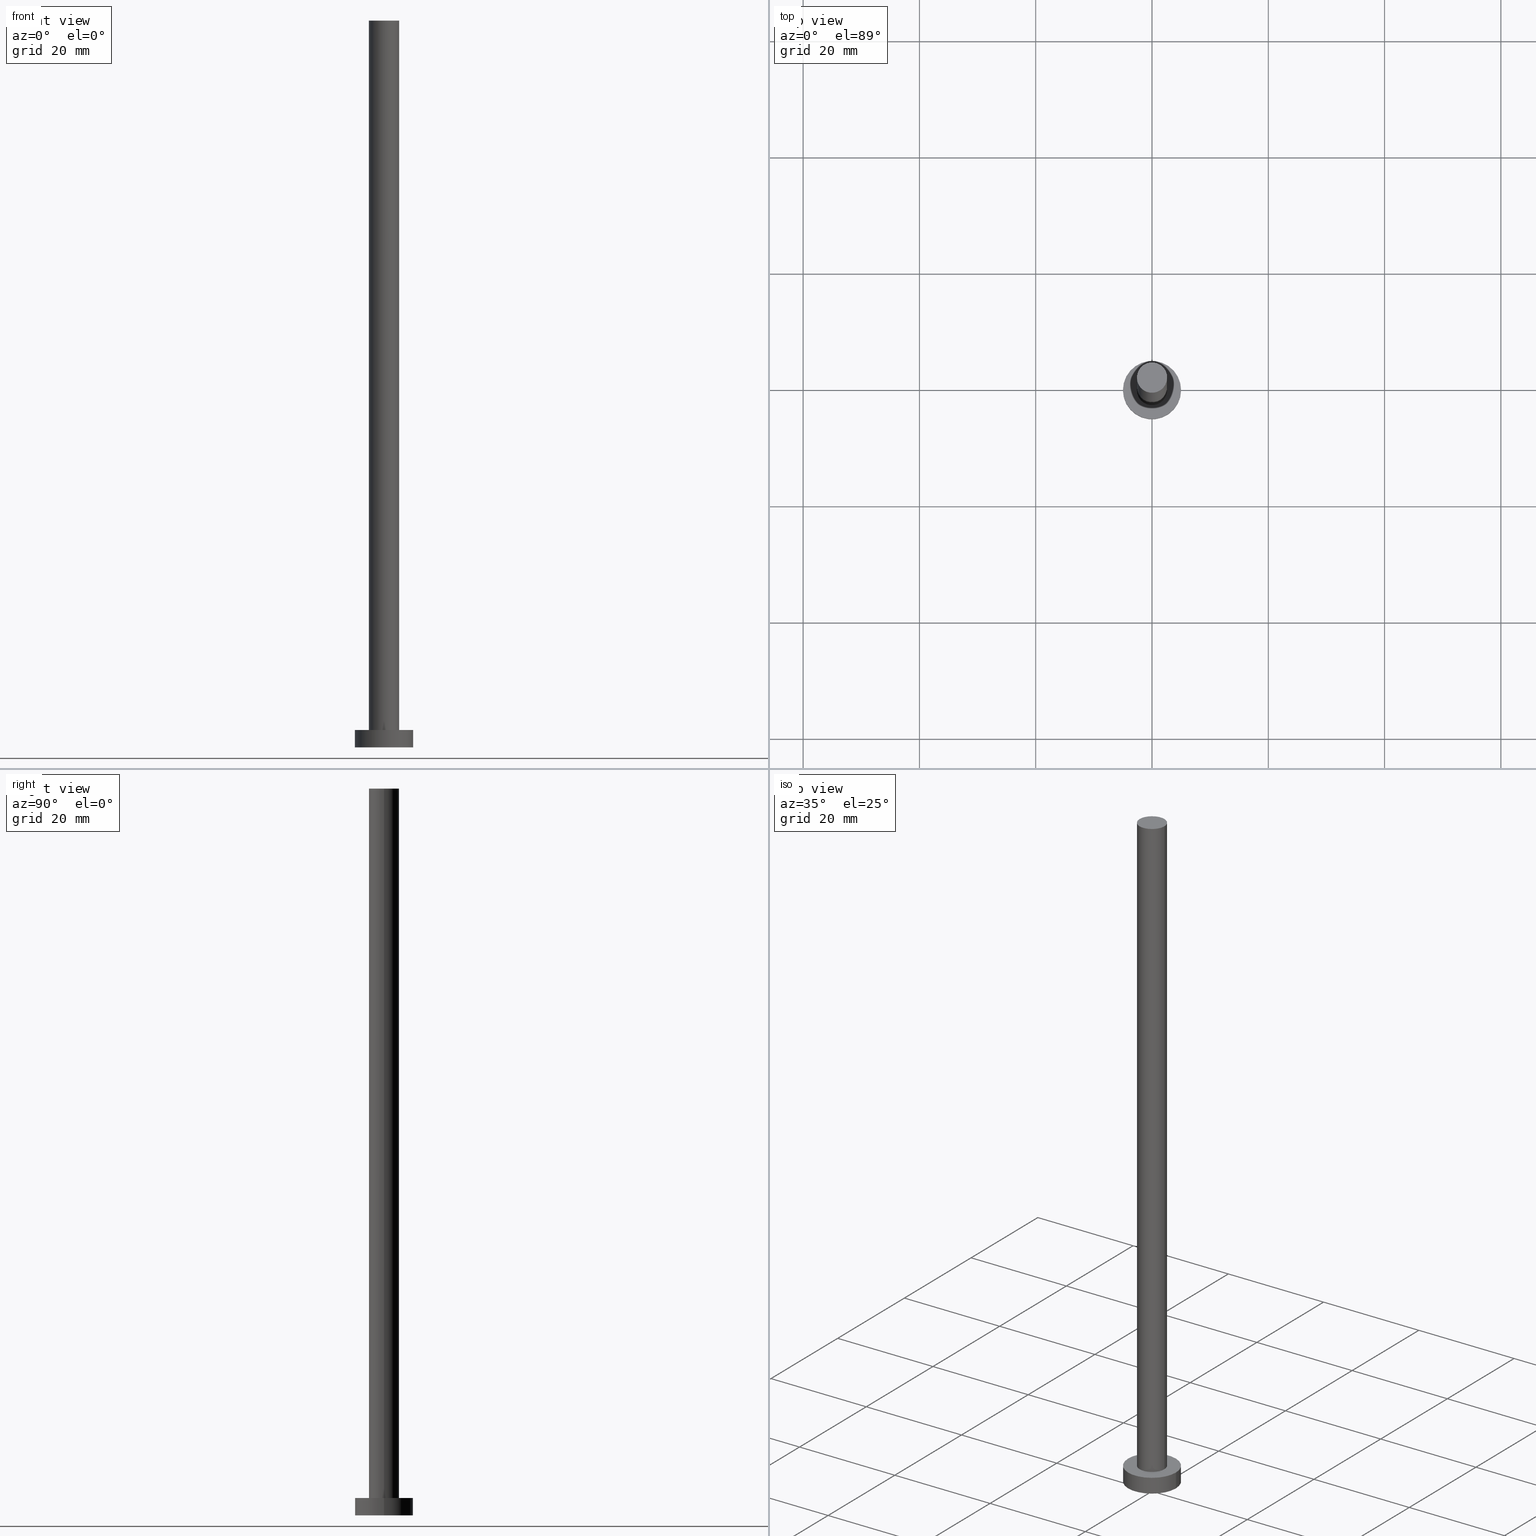
[diagram: canonical four-view strip — front | top / right | iso, engineering-drawing reading convention]
A machine part, canonical four-view strip (front | top / right | iso — engineering-drawing reading convention). The complete STEP part file that produces these views, byte-faithful:
ISO-10303-21;
HEADER;
FILE_DESCRIPTION (( 'STEP AP203' ),
    '1' );
FILE_NAME ('f566.STEP',
    '2023-02-13T15:49:22',
    ( '' ),
    ( '' ),
    'SwSTEP 2.0',
    'SolidWorks 2019',
    '' );
FILE_SCHEMA (( 'CONFIG_CONTROL_DESIGN' ));
ENDSEC;

DATA;
#1 = APPROVAL_STATUS ( 'not_yet_approved' ) ;
#2 = CC_DESIGN_PERSON_AND_ORGANIZATION_ASSIGNMENT ( #16, #27, ( #251 ) ) ;
#3 = DATE_AND_TIME ( #70, #64 ) ;
#4 = APPROVAL_DATE_TIME ( #3, #50 ) ;
#5 = CARTESIAN_POINT ( 'NONE',  ( 0.000000000000000000, 0.000000000000000000, 125.0000000000000000 ) ) ;
#6 = CARTESIAN_POINT ( 'NONE',  ( -5.000000000000000000, 0.000000000000000000, 3.000000000000000000 ) ) ;
#7 = ORIENTED_EDGE ( 'NONE', *, *, #233, .T. ) ;
#8 = ORIENTED_EDGE ( 'NONE', *, *, #151, .T. ) ;
#9 = DIRECTION ( 'NONE',  ( -1.000000000000000000, 0.000000000000000000, 0.000000000000000000 ) ) ;
#10 = APPROVAL_DATE_TIME ( #87, #147 ) ;
#11 = EDGE_CURVE ( 'NONE', #131, #250, #90, .T. ) ;
#12 = ORIENTED_EDGE ( 'NONE', *, *, #55, .F. ) ;
#13 = VECTOR ( 'NONE', #165, 1000.000000000000000 ) ;
#14 = CIRCLE ( 'NONE', #80, 2.600000000000000089 ) ;
#15 = PERSON_AND_ORGANIZATION ( #200, #49 ) ;
#16 = PERSON_AND_ORGANIZATION ( #200, #49 ) ;
#17 = EDGE_CURVE ( 'NONE', #206, #250, #66, .T. ) ;
#18 = COORDINATED_UNIVERSAL_TIME_OFFSET ( 1, 0, .AHEAD. ) ;
#19 = APPROVAL_STATUS ( 'not_yet_approved' ) ;
#20 = ORIENTED_EDGE ( 'NONE', *, *, #94, .F. ) ;
#21 = FACE_OUTER_BOUND ( 'NONE', #191, .T. ) ;
#22 = EDGE_LOOP ( 'NONE', ( #42, #119 ) ) ;
#23 = APPROVAL_PERSON_ORGANIZATION ( #186, #147, #97 ) ;
#24 = VERTEX_POINT ( 'NONE', #159 ) ;
#25 =( NAMED_UNIT ( * ) SI_UNIT ( $, .STERADIAN. ) SOLID_ANGLE_UNIT ( ) );
#26 = SECURITY_CLASSIFICATION ( '', '', #62 ) ;
#27 = PERSON_AND_ORGANIZATION_ROLE ( 'creator' ) ;
#28 = VERTEX_POINT ( 'NONE', #54 ) ;
#29 = CARTESIAN_POINT ( 'NONE',  ( 0.000000000000000000, 0.000000000000000000, 0.000000000000000000 ) ) ;
#30 = SHAPE_DEFINITION_REPRESENTATION ( #95, #228 ) ;
#31 = MANIFOLD_SOLID_BREP ( 'P�idat vysunut�m3', #239 ) ;
#32 =( NAMED_UNIT ( * ) PLANE_ANGLE_UNIT ( ) SI_UNIT ( $, .RADIAN. ) );
#33 = CIRCLE ( 'NONE', #45, 5.000000000000000000 ) ;
#34 = CIRCLE ( 'NONE', #134, 5.000000000000000000 ) ;
#35 = VECTOR ( 'NONE', #167, 1000.000000000000000 ) ;
#36 = LINE ( 'NONE', #39, #129 ) ;
#37 = CARTESIAN_POINT ( 'NONE',  ( 0.000000000000000000, 0.000000000000000000, 3.000000000000000000 ) ) ;
#38 = CC_DESIGN_PERSON_AND_ORGANIZATION_ASSIGNMENT ( #109, #40, ( #144 ) ) ;
#39 = CARTESIAN_POINT ( 'NONE',  ( -2.600000000000000089, 0.000000000000000000, 125.0000000000000000 ) ) ;
#40 = PERSON_AND_ORGANIZATION_ROLE ( 'design_owner' ) ;
#41 = CARTESIAN_POINT ( 'NONE',  ( 0.000000000000000000, 0.000000000000000000, 3.000000000000000000 ) ) ;
#42 = ORIENTED_EDGE ( 'NONE', *, *, #248, .T. ) ;
#43 = FACE_OUTER_BOUND ( 'NONE', #158, .T. ) ;
#44 = ORIENTED_EDGE ( 'NONE', *, *, #94, .T. ) ;
#45 = AXIS2_PLACEMENT_3D ( 'NONE', #247, #99, #152 ) ;
#46 = CC_DESIGN_DATE_AND_TIME_ASSIGNMENT ( #139, #75, ( #189 ) ) ;
#47 =( GEOMETRIC_REPRESENTATION_CONTEXT ( 3 ) GLOBAL_UNCERTAINTY_ASSIGNED_CONTEXT ( ( #137 ) ) GLOBAL_UNIT_ASSIGNED_CONTEXT ( ( #142, #32, #25 ) ) REPRESENTATION_CONTEXT ( 'NONE', 'WORKASPACE' ) );
#48 = ORIENTED_EDGE ( 'NONE', *, *, #59, .T. ) ;
#49 = ORGANIZATION ( 'NEUR�EN�', 'NEUR�EN�', '' ) ;
#50 = APPROVAL ( #116, 'NEUR�EN�' ) ;
#51 = APPLICATION_CONTEXT ( 'configuration controlled 3d designs of mechanical parts and assemblies' ) ;
#52 = PERSON_AND_ORGANIZATION ( #200, #49 ) ;
#53 = LOCAL_TIME ( 16, 49, 22.00000000000000000, #214 ) ;
#54 = CARTESIAN_POINT ( 'NONE',  ( -2.600000000000000089, 0.000000000000000000, 125.0000000000000000 ) ) ;
#55 = EDGE_CURVE ( 'NONE', #104, #28, #238, .T. ) ;
#56 = DIRECTION ( 'NONE',  ( 0.000000000000000000, 0.000000000000000000, 1.000000000000000000 ) ) ;
#57 = FACE_OUTER_BOUND ( 'NONE', #204, .T. ) ;
#58 = CYLINDRICAL_SURFACE ( 'NONE', #92, 5.000000000000000000 ) ;
#59 = EDGE_CURVE ( 'NONE', #28, #135, #36, .T. ) ;
#60 = DIRECTION ( 'NONE',  ( 1.000000000000000000, 0.000000000000000000, 0.000000000000000000 ) ) ;
#61 = AXIS2_PLACEMENT_3D ( 'NONE', #29, #124, #98 ) ;
#62 = SECURITY_CLASSIFICATION_LEVEL ( 'unclassified' ) ;
#63 = ORIENTED_EDGE ( 'NONE', *, *, #178, .F. ) ;
#64 = LOCAL_TIME ( 16, 49, 22.00000000000000000, #18 ) ;
#65 = ORIENTED_EDGE ( 'NONE', *, *, #11, .T. ) ;
#66 = LINE ( 'NONE', #110, #229 ) ;
#67 = PRODUCT_RELATED_PRODUCT_CATEGORY ( 'detail', '', ( #144 ) ) ;
#68 = LOCAL_TIME ( 16, 49, 22.00000000000000000, #218 ) ;
#69 = APPROVAL_DATE_TIME ( #93, #210 ) ;
#70 = CALENDAR_DATE ( 2023, 13, 2 ) ;
#71 = CARTESIAN_POINT ( 'NONE',  ( 5.000000000000000000, 6.123233995736766282E-16, 3.000000000000000000 ) ) ;
#72 = DIRECTION ( 'NONE',  ( 0.000000000000000000, 0.000000000000000000, 1.000000000000000000 ) ) ;
#73 = DIRECTION ( 'NONE',  ( 0.000000000000000000, 0.000000000000000000, 1.000000000000000000 ) ) ;
#74 = LINE ( 'NONE', #163, #13 ) ;
#75 = DATE_TIME_ROLE ( 'creation_date' ) ;
#76 = AXIS2_PLACEMENT_3D ( 'NONE', #249, #112, #176 ) ;
#77 = ORIENTED_EDGE ( 'NONE', *, *, #17, .F. ) ;
#78 = DIRECTION ( 'NONE',  ( 1.000000000000000000, 0.000000000000000000, -0.000000000000000000 ) ) ;
#79 = CYLINDRICAL_SURFACE ( 'NONE', #161, 2.600000000000000089 ) ;
#80 = AXIS2_PLACEMENT_3D ( 'NONE', #241, #56, #148 ) ;
#81 = ORIENTED_EDGE ( 'NONE', *, *, #178, .T. ) ;
#82 = DIRECTION ( 'NONE',  ( -0.000000000000000000, -0.000000000000000000, -1.000000000000000000 ) ) ;
#83 = ADVANCED_FACE ( 'NONE', ( #21 ), #79, .T. ) ;
#84 = ORIENTED_EDGE ( 'NONE', *, *, #151, .F. ) ;
#85 = DESIGN_CONTEXT ( 'detailed design', #51, 'design' ) ;
#86 = PLANE ( 'NONE',  #115 ) ;
#87 = DATE_AND_TIME ( #193, #254 ) ;
#88 = PERSON_AND_ORGANIZATION ( #200, #49 ) ;
#89 = DIRECTION ( 'NONE',  ( 0.000000000000000000, 0.000000000000000000, 1.000000000000000000 ) ) ;
#90 = CIRCLE ( 'NONE', #76, 5.000000000000000000 ) ;
#91 = CIRCLE ( 'NONE', #197, 5.000000000000000000 ) ;
#92 = AXIS2_PLACEMENT_3D ( 'NONE', #37, #171, #108 ) ;
#93 = DATE_AND_TIME ( #215, #53 ) ;
#94 = EDGE_CURVE ( 'NONE', #250, #131, #33, .T. ) ;
#95 = PRODUCT_DEFINITION_SHAPE ( 'NONE', 'NONE',  #189 ) ;
#96 = FACE_BOUND ( 'NONE', #101, .T. ) ;
#97 = APPROVAL_ROLE ( '' ) ;
#98 = DIRECTION ( 'NONE',  ( 1.000000000000000000, 0.000000000000000000, 0.000000000000000000 ) ) ;
#99 = DIRECTION ( 'NONE',  ( 0.000000000000000000, 0.000000000000000000, 1.000000000000000000 ) ) ;
#100 = EDGE_LOOP ( 'NONE', ( #20, #230 ) ) ;
#101 = EDGE_LOOP ( 'NONE', ( #185, #106 ) ) ;
#102 = LINE ( 'NONE', #225, #35 ) ;
#103 = CARTESIAN_POINT ( 'NONE',  ( 0.000000000000000000, 0.000000000000000000, 125.0000000000000000 ) ) ;
#104 = VERTEX_POINT ( 'NONE', #202 ) ;
#105 = DIRECTION ( 'NONE',  ( 1.000000000000000000, 0.000000000000000000, -0.000000000000000000 ) ) ;
#106 = ORIENTED_EDGE ( 'NONE', *, *, #252, .F. ) ;
#107 = CARTESIAN_POINT ( 'NONE',  ( 0.000000000000000000, 0.000000000000000000, 0.000000000000000000 ) ) ;
#108 = DIRECTION ( 'NONE',  ( -1.000000000000000000, 0.000000000000000000, 0.000000000000000000 ) ) ;
#109 = PERSON_AND_ORGANIZATION ( #200, #49 ) ;
#110 = CARTESIAN_POINT ( 'NONE',  ( -5.000000000000000000, 0.000000000000000000, 3.000000000000000000 ) ) ;
#111 = DATE_TIME_ROLE ( 'classification_date' ) ;
#112 = DIRECTION ( 'NONE',  ( 0.000000000000000000, 0.000000000000000000, 1.000000000000000000 ) ) ;
#113 = DIRECTION ( 'NONE',  ( 1.000000000000000000, 0.000000000000000000, 0.000000000000000000 ) ) ;
#114 = AXIS2_PLACEMENT_3D ( 'NONE', #172, #89, #153 ) ;
#115 = AXIS2_PLACEMENT_3D ( 'NONE', #107, #120, #78 ) ;
#116 = APPROVAL_STATUS ( 'not_yet_approved' ) ;
#117 = ADVANCED_FACE ( 'NONE', ( #226 ), #243, .T. ) ;
#118 = CALENDAR_DATE ( 2023, 13, 2 ) ;
#119 = ORIENTED_EDGE ( 'NONE', *, *, #55, .T. ) ;
#120 = DIRECTION ( 'NONE',  ( 0.000000000000000000, 0.000000000000000000, 1.000000000000000000 ) ) ;
#121 = LOCAL_TIME ( 16, 49, 22.00000000000000000, #213 ) ;
#122 = PLANE ( 'NONE',  #240 ) ;
#123 = MECHANICAL_CONTEXT ( 'NONE', #237, 'mechanical' ) ;
#124 = DIRECTION ( 'NONE',  ( 0.000000000000000000, 0.000000000000000000, 1.000000000000000000 ) ) ;
#125 = DIRECTION ( 'NONE',  ( -0.000000000000000000, -0.000000000000000000, -1.000000000000000000 ) ) ;
#126 = EDGE_LOOP ( 'NONE', ( #84, #7, #65, #77 ) ) ;
#127 = CYLINDRICAL_SURFACE ( 'NONE', #211, 2.600000000000000089 ) ;
#128 = ADVANCED_FACE ( 'NONE', ( #43 ), #127, .T. ) ;
#129 = VECTOR ( 'NONE', #125, 1000.000000000000000 ) ;
#130 = ORIENTED_EDGE ( 'NONE', *, *, #59, .F. ) ;
#131 = VERTEX_POINT ( 'NONE', #146 ) ;
#132 = DIRECTION ( 'NONE',  ( 1.000000000000000000, 0.000000000000000000, 0.000000000000000000 ) ) ;
#133 = CARTESIAN_POINT ( 'NONE',  ( 0.000000000000000000, 0.000000000000000000, 3.000000000000000000 ) ) ;
#134 = AXIS2_PLACEMENT_3D ( 'NONE', #133, #209, #60 ) ;
#135 = VERTEX_POINT ( 'NONE', #224 ) ;
#136 = ADVANCED_FACE ( 'NONE', ( #184 ), #58, .T. ) ;
#137 = UNCERTAINTY_MEASURE_WITH_UNIT (LENGTH_MEASURE( 1.000000000000000082E-05 ), #142, 'distance_accuracy_value', 'NONE');
#138 = EDGE_CURVE ( 'NONE', #135, #24, #244, .T. ) ;
#139 = DATE_AND_TIME ( #198, #68 ) ;
#140 = APPROVAL_PERSON_ORGANIZATION ( #15, #210, #177 ) ;
#141 = CARTESIAN_POINT ( 'NONE',  ( 0.000000000000000000, 0.000000000000000000, 3.000000000000000000 ) ) ;
#142 =( LENGTH_UNIT ( ) NAMED_UNIT ( * ) SI_UNIT ( .MILLI., .METRE. ) );
#143 = DIRECTION ( 'NONE',  ( 0.000000000000000000, 0.000000000000000000, 1.000000000000000000 ) ) ;
#144 = PRODUCT ( 'f566', 'f566', '', ( #123 ) ) ;
#145 = CARTESIAN_POINT ( 'NONE',  ( 0.000000000000000000, 0.000000000000000000, 125.0000000000000000 ) ) ;
#146 = CARTESIAN_POINT ( 'NONE',  ( 5.000000000000000000, 6.123233995736766282E-16, 0.000000000000000000 ) ) ;
#147 = APPROVAL ( #19, 'NEUR�EN�' ) ;
#148 = DIRECTION ( 'NONE',  ( 1.000000000000000000, 0.000000000000000000, 0.000000000000000000 ) ) ;
#149 = DIRECTION ( 'NONE',  ( -1.000000000000000000, 0.000000000000000000, 0.000000000000000000 ) ) ;
#150 = CARTESIAN_POINT ( 'NONE',  ( -5.000000000000000000, 0.000000000000000000, 0.000000000000000000 ) ) ;
#151 = EDGE_CURVE ( 'NONE', #255, #206, #34, .T. ) ;
#152 = DIRECTION ( 'NONE',  ( 1.000000000000000000, 0.000000000000000000, 0.000000000000000000 ) ) ;
#153 = DIRECTION ( 'NONE',  ( 1.000000000000000000, 0.000000000000000000, 0.000000000000000000 ) ) ;
#154 = AXIS2_PLACEMENT_3D ( 'NONE', #223, #82, #221 ) ;
#155 = ORIENTED_EDGE ( 'NONE', *, *, #17, .T. ) ;
#156 = PERSON_AND_ORGANIZATION_ROLE ( 'creator' ) ;
#157 = AXIS2_PLACEMENT_3D ( 'NONE', #141, #143, #113 ) ;
#158 = EDGE_LOOP ( 'NONE', ( #12, #81, #168, #130 ) ) ;
#159 = CARTESIAN_POINT ( 'NONE',  ( 2.600000000000000089, 3.184081677783117698E-16, 3.000000000000000000 ) ) ;
#160 = APPROVAL_ROLE ( '' ) ;
#161 = AXIS2_PLACEMENT_3D ( 'NONE', #103, #164, #9 ) ;
#162 = AXIS2_PLACEMENT_3D ( 'NONE', #5, #73, #181 ) ;
#163 = CARTESIAN_POINT ( 'NONE',  ( 5.000000000000000000, 6.123233995736766282E-16, 3.000000000000000000 ) ) ;
#164 = DIRECTION ( 'NONE',  ( -0.000000000000000000, -0.000000000000000000, -1.000000000000000000 ) ) ;
#165 = DIRECTION ( 'NONE',  ( -0.000000000000000000, -0.000000000000000000, -1.000000000000000000 ) ) ;
#166 = ADVANCED_FACE ( 'NONE', ( #231 ), #86, .F. ) ;
#167 = DIRECTION ( 'NONE',  ( -0.000000000000000000, -0.000000000000000000, -1.000000000000000000 ) ) ;
#168 = ORIENTED_EDGE ( 'NONE', *, *, #252, .T. ) ;
#169 = DIRECTION ( 'NONE',  ( -0.000000000000000000, -0.000000000000000000, -1.000000000000000000 ) ) ;
#170 = CC_DESIGN_PERSON_AND_ORGANIZATION_ASSIGNMENT ( #236, #195, ( #26 ) ) ;
#171 = DIRECTION ( 'NONE',  ( -0.000000000000000000, -0.000000000000000000, -1.000000000000000000 ) ) ;
#172 = CARTESIAN_POINT ( 'NONE',  ( 0.000000000000000000, 0.000000000000000000, 3.000000000000000000 ) ) ;
#173 = PERSON_AND_ORGANIZATION ( #200, #49 ) ;
#174 = CC_DESIGN_SECURITY_CLASSIFICATION ( #26, ( #251 ) ) ;
#175 = ORIENTED_EDGE ( 'NONE', *, *, #233, .F. ) ;
#176 = DIRECTION ( 'NONE',  ( 1.000000000000000000, 0.000000000000000000, 0.000000000000000000 ) ) ;
#177 = APPROVAL_ROLE ( '' ) ;
#178 = EDGE_CURVE ( 'NONE', #104, #24, #102, .T. ) ;
#179 = CIRCLE ( 'NONE', #157, 2.600000000000000089 ) ;
#180 = DIRECTION ( 'NONE',  ( -0.000000000000000000, -0.000000000000000000, -1.000000000000000000 ) ) ;
#181 = DIRECTION ( 'NONE',  ( 1.000000000000000000, 0.000000000000000000, -0.000000000000000000 ) ) ;
#182 = COORDINATED_UNIVERSAL_TIME_OFFSET ( 1, 0, .AHEAD. ) ;
#183 = DIRECTION ( 'NONE',  ( 0.000000000000000000, 0.000000000000000000, 1.000000000000000000 ) ) ;
#184 = FACE_OUTER_BOUND ( 'NONE', #126, .T. ) ;
#185 = ORIENTED_EDGE ( 'NONE', *, *, #138, .F. ) ;
#186 = PERSON_AND_ORGANIZATION ( #200, #49 ) ;
#187 = ORIENTED_EDGE ( 'NONE', *, *, #138, .T. ) ;
#188 = PLANE ( 'NONE',  #162 ) ;
#189 = PRODUCT_DEFINITION ( 'NEZN�M�', '', #251, #85 ) ;
#190 = ORIENTED_EDGE ( 'NONE', *, *, #192, .T. ) ;
#191 = EDGE_LOOP ( 'NONE', ( #63, #253, #48, #187 ) ) ;
#192 = EDGE_CURVE ( 'NONE', #206, #255, #91, .T. ) ;
#193 = CALENDAR_DATE ( 2023, 13, 2 ) ;
#194 = APPROVAL_PERSON_ORGANIZATION ( #52, #50, #160 ) ;
#195 = PERSON_AND_ORGANIZATION_ROLE ( 'classification_officer' ) ;
#196 = AXIS2_PLACEMENT_3D ( 'NONE', #145, #72, #220 ) ;
#197 = AXIS2_PLACEMENT_3D ( 'NONE', #41, #183, #132 ) ;
#198 = CALENDAR_DATE ( 2023, 13, 2 ) ;
#199 = ADVANCED_FACE ( 'NONE', ( #96, #57 ), #122, .T. ) ;
#200 = PERSON ( 'NEUR�EN�', 'NEUR�EN�', 'NEUR�EN�', ('NEUR�EN�'), ('NEUR�EN�'), ('NEUR�EN�') ) ;
#201 = CC_DESIGN_PERSON_AND_ORGANIZATION_ASSIGNMENT ( #173, #156, ( #189 ) ) ;
#202 = CARTESIAN_POINT ( 'NONE',  ( 2.600000000000000089, 3.184081677783117698E-16, 125.0000000000000000 ) ) ;
#203 = PERSON_AND_ORGANIZATION_ROLE ( 'design_supplier' ) ;
#204 = EDGE_LOOP ( 'NONE', ( #190, #8 ) ) ;
#205 = APPLICATION_PROTOCOL_DEFINITION ( 'international standard', 'config_control_design', 1994, #51 ) ;
#206 = VERTEX_POINT ( 'NONE', #6 ) ;
#207 = CARTESIAN_POINT ( 'NONE',  ( 0.000000000000000000, 0.000000000000000000, 3.000000000000000000 ) ) ;
#208 = CC_DESIGN_DATE_AND_TIME_ASSIGNMENT ( #216, #111, ( #26 ) ) ;
#209 = DIRECTION ( 'NONE',  ( 0.000000000000000000, 0.000000000000000000, 1.000000000000000000 ) ) ;
#210 = APPROVAL ( #1, 'NEUR�EN�' ) ;
#211 = AXIS2_PLACEMENT_3D ( 'NONE', #242, #169, #149 ) ;
#212 = CC_DESIGN_APPROVAL ( #147, ( #189 ) ) ;
#213 = COORDINATED_UNIVERSAL_TIME_OFFSET ( 1, 0, .AHEAD. ) ;
#214 = COORDINATED_UNIVERSAL_TIME_OFFSET ( 1, 0, .AHEAD. ) ;
#215 = CALENDAR_DATE ( 2023, 13, 2 ) ;
#216 = DATE_AND_TIME ( #118, #121 ) ;
#217 = CC_DESIGN_PERSON_AND_ORGANIZATION_ASSIGNMENT ( #88, #203, ( #251 ) ) ;
#218 = COORDINATED_UNIVERSAL_TIME_OFFSET ( 1, 0, .AHEAD. ) ;
#219 = CC_DESIGN_APPROVAL ( #50, ( #26 ) ) ;
#220 = DIRECTION ( 'NONE',  ( 1.000000000000000000, 0.000000000000000000, 0.000000000000000000 ) ) ;
#221 = DIRECTION ( 'NONE',  ( -1.000000000000000000, 0.000000000000000000, 0.000000000000000000 ) ) ;
#222 = FACE_OUTER_BOUND ( 'NONE', #22, .T. ) ;
#223 = CARTESIAN_POINT ( 'NONE',  ( 0.000000000000000000, 0.000000000000000000, 3.000000000000000000 ) ) ;
#224 = CARTESIAN_POINT ( 'NONE',  ( -2.600000000000000089, 0.000000000000000000, 3.000000000000000000 ) ) ;
#225 = CARTESIAN_POINT ( 'NONE',  ( 2.600000000000000089, 3.184081677783117698E-16, 125.0000000000000000 ) ) ;
#226 = FACE_OUTER_BOUND ( 'NONE', #234, .T. ) ;
#227 = ADVANCED_FACE ( 'NONE', ( #222 ), #188, .T. ) ;
#228 = ADVANCED_BREP_SHAPE_REPRESENTATION ( 'f566', ( #31, #61 ), #47 ) ;
#229 = VECTOR ( 'NONE', #180, 1000.000000000000000 ) ;
#230 = ORIENTED_EDGE ( 'NONE', *, *, #11, .F. ) ;
#231 = FACE_OUTER_BOUND ( 'NONE', #100, .T. ) ;
#232 = ORIENTED_EDGE ( 'NONE', *, *, #192, .F. ) ;
#233 = EDGE_CURVE ( 'NONE', #255, #131, #74, .T. ) ;
#234 = EDGE_LOOP ( 'NONE', ( #175, #232, #155, #44 ) ) ;
#235 = CC_DESIGN_APPROVAL ( #210, ( #251 ) ) ;
#236 = PERSON_AND_ORGANIZATION ( #200, #49 ) ;
#237 = APPLICATION_CONTEXT ( 'configuration controlled 3d designs of mechanical parts and assemblies' ) ;
#238 = CIRCLE ( 'NONE', #196, 2.600000000000000089 ) ;
#239 = CLOSED_SHELL ( 'NONE', ( #128, #136, #117, #199, #166, #83, #227 ) ) ;
#240 = AXIS2_PLACEMENT_3D ( 'NONE', #207, #245, #105 ) ;
#241 = CARTESIAN_POINT ( 'NONE',  ( 0.000000000000000000, 0.000000000000000000, 125.0000000000000000 ) ) ;
#242 = CARTESIAN_POINT ( 'NONE',  ( 0.000000000000000000, 0.000000000000000000, 125.0000000000000000 ) ) ;
#243 = CYLINDRICAL_SURFACE ( 'NONE', #154, 5.000000000000000000 ) ;
#244 = CIRCLE ( 'NONE', #114, 2.600000000000000089 ) ;
#245 = DIRECTION ( 'NONE',  ( 0.000000000000000000, 0.000000000000000000, 1.000000000000000000 ) ) ;
#246 = APPLICATION_PROTOCOL_DEFINITION ( 'international standard', 'config_control_design', 1994, #237 ) ;
#247 = CARTESIAN_POINT ( 'NONE',  ( 0.000000000000000000, 0.000000000000000000, 0.000000000000000000 ) ) ;
#248 = EDGE_CURVE ( 'NONE', #28, #104, #14, .T. ) ;
#249 = CARTESIAN_POINT ( 'NONE',  ( 0.000000000000000000, 0.000000000000000000, 0.000000000000000000 ) ) ;
#250 = VERTEX_POINT ( 'NONE', #150 ) ;
#251 = PRODUCT_DEFINITION_FORMATION_WITH_SPECIFIED_SOURCE ( 'LIBOVOLN�', '', #144, .NOT_KNOWN. ) ;
#252 = EDGE_CURVE ( 'NONE', #24, #135, #179, .T. ) ;
#253 = ORIENTED_EDGE ( 'NONE', *, *, #248, .F. ) ;
#254 = LOCAL_TIME ( 16, 49, 22.00000000000000000, #182 ) ;
#255 = VERTEX_POINT ( 'NONE', #71 ) ;
ENDSEC;
END-ISO-10303-21;
